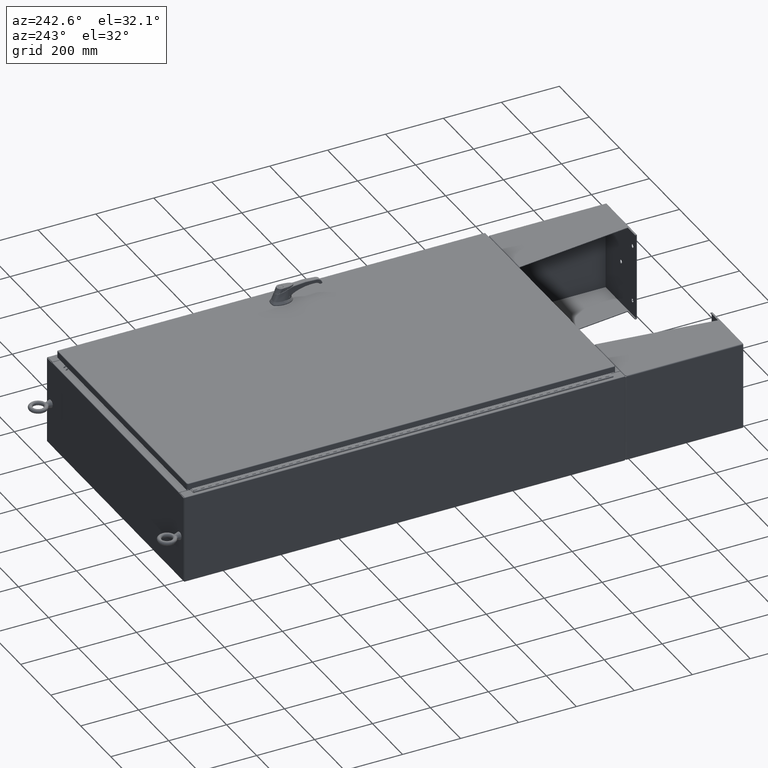
[diagram: clean part render]
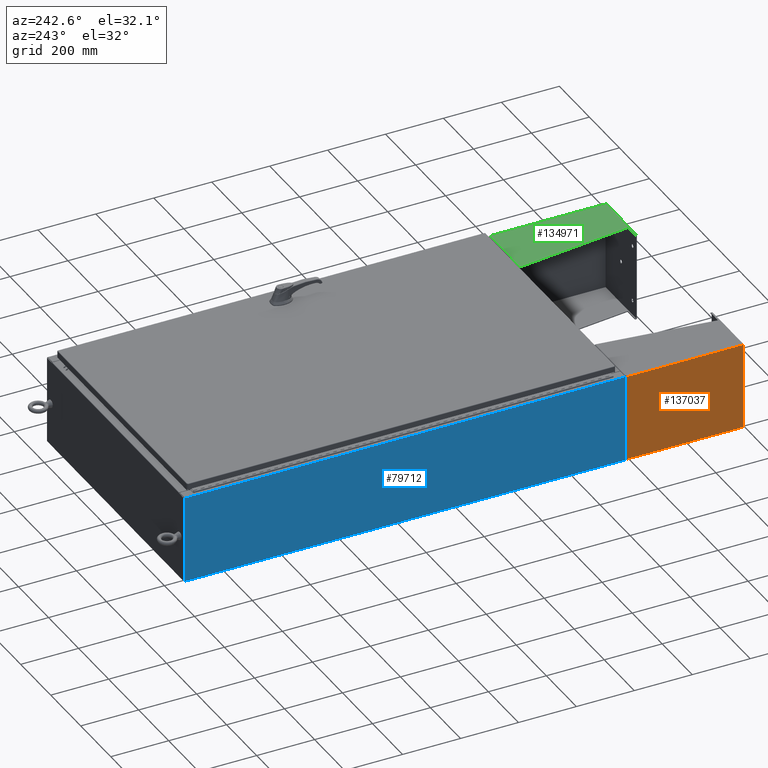
[diagram: same view with three faces highlighted in distinct colors, each labeled with its STEP entity id]
A machine part, auxiliary view with three faces highlighted in distinct colors.
Their STEP definitions:

[orange] entity #137037 — the highlighted planar face has unit normal (-1, 0, -0).
#2098 = VERTEX_POINT ( 'NONE', #40628 ) ;
#7407 = VECTOR ( 'NONE', #125602, 39.37007874015748100 ) ;
#18543 = EDGE_LOOP ( 'NONE', ( #98284, #33803, #34941, #119314 ) ) ;
#22575 = AXIS2_PLACEMENT_3D ( 'NONE', #24157, #35523, #114759 ) ;
#24157 = CARTESIAN_POINT ( 'NONE',  ( 5.999999999999996400, 8.000000000000001800, -0.1039999999999999800 ) ) ;
#26324 = CARTESIAN_POINT ( 'NONE',  ( -5.857000000000000200, -8.000000000000000000, -0.1039999999999998600 ) ) ;
#28467 = EDGE_CURVE ( 'NONE', #98365, #105161, #90963, .T. ) ;
#31236 = DIRECTION ( 'NONE',  ( 1.000000000000000000, 0.0000000000000000000, 0.0000000000000000000 ) ) ;
#31982 = EDGE_CURVE ( 'NONE', #105161, #2098, #67500, .T. ) ;
#33803 = ORIENTED_EDGE ( 'NONE', *, *, #31982, .T. ) ;
#34941 = ORIENTED_EDGE ( 'NONE', *, *, #98997, .T. ) ;
#35523 = DIRECTION ( 'NONE',  ( 0.0000000000000000000, 0.0000000000000000000, -1.000000000000000000 ) ) ;
#38472 = CARTESIAN_POINT ( 'NONE',  ( -5.857000000000000200, -7.999999999999999100, -0.1039999999999998600 ) ) ;
#40628 = CARTESIAN_POINT ( 'NONE',  ( 5.857000000000000200, 7.857000000000001100, -0.1039999999999998600 ) ) ;
#48250 = VECTOR ( 'NONE', #31236, 39.37007874015748100 ) ;
#55661 = CARTESIAN_POINT ( 'NONE',  ( 5.857000000000000200, 8.000000000000001800, -0.1039999999999998600 ) ) ;
#66989 = DIRECTION ( 'NONE',  ( -0.0000000000000000000, -1.000000000000000000, -0.0000000000000000000 ) ) ;
#67500 = LINE ( 'NONE', #80508, #7407 ) ;
#80508 = CARTESIAN_POINT ( 'NONE',  ( -5.857000000000000200, 7.857000000000001100, -0.1039999999999998600 ) ) ;
#84123 = VERTEX_POINT ( 'NONE', #120752 ) ;
#86767 = CARTESIAN_POINT ( 'NONE',  ( -5.857000000000000200, 7.856999999999998400, -0.1039999999999999000 ) ) ;
#90963 = LINE ( 'NONE', #38472, #94488 ) ;
#92759 = VECTOR ( 'NONE', #66989, 39.37007874015748100 ) ;
#94488 = VECTOR ( 'NONE', #117670, 39.37007874015748100 ) ;
#98284 = ORIENTED_EDGE ( 'NONE', *, *, #28467, .T. ) ;
#98365 = VERTEX_POINT ( 'NONE', #26324 ) ;
#98997 = EDGE_CURVE ( 'NONE', #2098, #84123, #122938, .T. ) ;
#99021 = CARTESIAN_POINT ( 'NONE',  ( -6.000000000000000900, -7.999999999999999100, -0.1039999999999999800 ) ) ;
#104947 = LINE ( 'NONE', #99021, #48250 ) ;
#105161 = VERTEX_POINT ( 'NONE', #86767 ) ;
#110583 = FACE_OUTER_BOUND ( 'NONE', #18543, .T. ) ;
#114759 = DIRECTION ( 'NONE',  ( -1.000000000000000000, 0.0000000000000000000, -0.0000000000000000000 ) ) ;
#117670 = DIRECTION ( 'NONE',  ( -0.0000000000000000000, 1.000000000000000000, -0.0000000000000000000 ) ) ;
#119029 = EDGE_CURVE ( 'NONE', #98365, #84123, #104947, .T. ) ;
#119314 = ORIENTED_EDGE ( 'NONE', *, *, #119029, .F. ) ;
#120752 = CARTESIAN_POINT ( 'NONE',  ( 5.857000000000000200, -7.999999999999989300, -0.1039999999999998600 ) ) ;
#122938 = LINE ( 'NONE', #55661, #92759 ) ;
#125593 = PLANE ( 'NONE',  #22575 ) ;
#125602 = DIRECTION ( 'NONE',  ( 1.000000000000000000, 0.0000000000000000000, 0.0000000000000000000 ) ) ;
#137037 = ADVANCED_FACE ( 'NONE', ( #110583 ), #125593, .T. ) ;

[blue] entity #79712 — the highlighted planar face has unit normal (1, 0, 0).
#7468 = CARTESIAN_POINT ( 'NONE',  ( -18.00000000000004300, 29.92529999999998900, 11.83760000000000200 ) ) ;
#8518 = EDGE_CURVE ( 'NONE', #103286, #27018, #121556, .T. ) ;
#12163 = EDGE_CURVE ( 'NONE', #27018, #60148, #33328, .T. ) ;
#13583 = VECTOR ( 'NONE', #22906, 39.37007874015748100 ) ;
#19634 = CARTESIAN_POINT ( 'NONE',  ( -18.00000000000004300, -29.92530000000001800, 11.83760000000000200 ) ) ;
#22906 = DIRECTION ( 'NONE',  ( 3.482016343714355500E-015, 0.0000000000000000000, -1.000000000000000000 ) ) ;
#25677 = EDGE_CURVE ( 'NONE', #60148, #69696, #47213, .T. ) ;
#27018 = VERTEX_POINT ( 'NONE', #124041 ) ;
#33328 = LINE ( 'NONE', #19634, #120091 ) ;
#37732 = PLANE ( 'NONE',  #75630 ) ;
#47213 = LINE ( 'NONE', #56538, #13583 ) ;
#49625 = CARTESIAN_POINT ( 'NONE',  ( -18.00000000000000400, 0.0000000000000000000, -6.293710784286997500E-014 ) ) ;
#56538 = CARTESIAN_POINT ( 'NONE',  ( -18.00000000000000400, 29.92529999999998900, -6.293710784286997500E-014 ) ) ;
#60148 = VERTEX_POINT ( 'NONE', #7468 ) ;
#60937 = DIRECTION ( 'NONE',  ( 3.482016343714355100E-015, 0.0000000000000000000, -1.000000000000000000 ) ) ;
#63753 = CARTESIAN_POINT ( 'NONE',  ( -18.00000000000000400, -29.92530000000001100, -6.293710784286997500E-014 ) ) ;
#66994 = ORIENTED_EDGE ( 'NONE', *, *, #25677, .T. ) ;
#69696 = VERTEX_POINT ( 'NONE', #105323 ) ;
#71626 = ORIENTED_EDGE ( 'NONE', *, *, #8518, .T. ) ;
#75630 = AXIS2_PLACEMENT_3D ( 'NONE', #49625, #128750, #60937 ) ;
#76886 = DIRECTION ( 'NONE',  ( -0.0000000000000000000, 1.000000000000000000, -0.0000000000000000000 ) ) ;
#78704 = CARTESIAN_POINT ( 'NONE',  ( -18.00000000000000400, -29.92530000000001100, 0.01299999999999984700 ) ) ;
#79712 = ADVANCED_FACE ( 'NONE', ( #110473 ), #37732, .F. ) ;
#80984 = EDGE_CURVE ( 'NONE', #103286, #69696, #131331, .T. ) ;
#83966 = ORIENTED_EDGE ( 'NONE', *, *, #80984, .F. ) ;
#91388 = VECTOR ( 'NONE', #97954, 39.37007874015748100 ) ;
#97954 = DIRECTION ( 'NONE',  ( -3.482016343714355500E-015, 0.0000000000000000000, 1.000000000000000000 ) ) ;
#101318 = VECTOR ( 'NONE', #76886, 39.37007874015748100 ) ;
#103286 = VERTEX_POINT ( 'NONE', #78704 ) ;
#105323 = CARTESIAN_POINT ( 'NONE',  ( -18.00000000000000400, 29.92529999999998600, 0.01299999999999984700 ) ) ;
#110473 = FACE_OUTER_BOUND ( 'NONE', #123767, .T. ) ;
#113306 = ORIENTED_EDGE ( 'NONE', *, *, #12163, .T. ) ;
#120091 = VECTOR ( 'NONE', #143747, 39.37007874015748100 ) ;
#121556 = LINE ( 'NONE', #63753, #91388 ) ;
#123767 = EDGE_LOOP ( 'NONE', ( #113306, #66994, #83966, #71626 ) ) ;
#124041 = CARTESIAN_POINT ( 'NONE',  ( -18.00000000000004300, -29.92530000000001100, 11.83760000000000200 ) ) ;
#128750 = DIRECTION ( 'NONE',  ( 1.000000000000000000, 0.0000000000000000000, 3.482016343714355100E-015 ) ) ;
#131331 = LINE ( 'NONE', #133246, #101318 ) ;
#133246 = CARTESIAN_POINT ( 'NONE',  ( -18.00000000000000400, 29.92529999999998900, 0.01299999999999984700 ) ) ;
#143747 = DIRECTION ( 'NONE',  ( 0.0000000000000000000, 1.000000000000000000, 0.0000000000000000000 ) ) ;

[green] entity #134971 — the highlighted planar face has unit normal (-0, -0, -1).
#1483 = LINE ( 'NONE', #100852, #28015 ) ;
#2645 = CARTESIAN_POINT ( 'NONE',  ( 6.000000000000013300, 7.857000000000001100, 0.03900000000001561900 ) ) ;
#6778 = VECTOR ( 'NONE', #79587, 39.37007874015748100 ) ;
#11901 = VERTEX_POINT ( 'NONE', #38942 ) ;
#13963 = LINE ( 'NONE', #145163, #130720 ) ;
#17097 = ORIENTED_EDGE ( 'NONE', *, *, #79608, .T. ) ;
#17656 = CARTESIAN_POINT ( 'NONE',  ( 6.000000000000029300, -7.999999999999999100, 8.001000000000015400 ) ) ;
#20277 = VECTOR ( 'NONE', #103069, 39.37007874015748100 ) ;
#21679 = ORIENTED_EDGE ( 'NONE', *, *, #24357, .T. ) ;
#24357 = EDGE_CURVE ( 'NONE', #106937, #11901, #36834, .T. ) ;
#25298 = ORIENTED_EDGE ( 'NONE', *, *, #59497, .F. ) ;
#25980 = ORIENTED_EDGE ( 'NONE', *, *, #27846, .T. ) ;
#27846 = EDGE_CURVE ( 'NONE', #11901, #118784, #140587, .T. ) ;
#28015 = VECTOR ( 'NONE', #44412, 39.37007874015748100 ) ;
#29036 = DIRECTION ( 'NONE',  ( -1.000000000000000000, 0.0000000000000000000, 3.550958521948298200E-015 ) ) ;
#36834 = LINE ( 'NONE', #113353, #6778 ) ;
#37524 = VERTEX_POINT ( 'NONE', #45082 ) ;
#37702 = CARTESIAN_POINT ( 'NONE',  ( 6.000000000000000900, -7.999999999999993800, 0.03899999999999890400 ) ) ;
#38942 = CARTESIAN_POINT ( 'NONE',  ( 6.000000000000029300, -7.999999999999999100, 8.001000000000015400 ) ) ;
#44412 = DIRECTION ( 'NONE',  ( -0.0000000000000000000, -1.000000000000000000, 0.0000000000000000000 ) ) ;
#45082 = CARTESIAN_POINT ( 'NONE',  ( 6.000000000000013300, 7.857000000000001100, 8.001000000000013700 ) ) ;
#59497 = EDGE_CURVE ( 'NONE', #73999, #37524, #13963, .T. ) ;
#64298 = CARTESIAN_POINT ( 'NONE',  ( 6.000000000000029300, -7.749999999999999100, 8.001000000000015400 ) ) ;
#64335 = VECTOR ( 'NONE', #70320, 39.37007874015748100 ) ;
#65639 = CARTESIAN_POINT ( 'NONE',  ( 6.000000000000013300, 7.857000000000001100, 0.03900000000001453000 ) ) ;
#68804 = CARTESIAN_POINT ( 'NONE',  ( 6.000000000000029300, -7.999999999999999100, 8.001000000000015400 ) ) ;
#69756 = AXIS2_PLACEMENT_3D ( 'NONE', #17656, #29036, #108273 ) ;
#70320 = DIRECTION ( 'NONE',  ( 0.0000000000000000000, 0.0000000000000000000, 1.000000000000000000 ) ) ;
#73999 = VERTEX_POINT ( 'NONE', #105112 ) ;
#79587 = DIRECTION ( 'NONE',  ( 0.0000000000000000000, -1.000000000000000000, 0.0000000000000000000 ) ) ;
#79608 = EDGE_CURVE ( 'NONE', #111374, #37524, #94443, .T. ) ;
#82520 = LINE ( 'NONE', #64298, #112769 ) ;
#87009 = ORIENTED_EDGE ( 'NONE', *, *, #111430, .F. ) ;
#88768 = DIRECTION ( 'NONE',  ( 4.399772607369798900E-016, 0.9922942345449394800, 0.1239038017531047700 ) ) ;
#90887 = EDGE_LOOP ( 'NONE', ( #122853, #21679, #25980, #87009, #17097, #25298 ) ) ;
#94443 = LINE ( 'NONE', #2645, #64335 ) ;
#96873 = EDGE_CURVE ( 'NONE', #106937, #73999, #82520, .T. ) ;
#97995 = DIRECTION ( 'NONE',  ( -3.550958521948298200E-015, -0.0000000000000000000, -1.000000000000000000 ) ) ;
#100852 = CARTESIAN_POINT ( 'NONE',  ( 5.999999999999999100, -7.999999999999999100, 0.03900000000001453000 ) ) ;
#103069 = DIRECTION ( 'NONE',  ( -3.550958521948298200E-015, 0.0000000000000000000, -1.000000000000000000 ) ) ;
#105112 = CARTESIAN_POINT ( 'NONE',  ( 6.000000000000021300, -7.749999999999999100, 6.052216497445950700 ) ) ;
#106937 = VERTEX_POINT ( 'NONE', #128623 ) ;
#108273 = DIRECTION ( 'NONE',  ( 3.550958521948298200E-015, 0.0000000000000000000, 1.000000000000000000 ) ) ;
#111374 = VERTEX_POINT ( 'NONE', #65639 ) ;
#111430 = EDGE_CURVE ( 'NONE', #111374, #118784, #1483, .T. ) ;
#112769 = VECTOR ( 'NONE', #97995, 39.37007874015748100 ) ;
#113353 = CARTESIAN_POINT ( 'NONE',  ( 6.000000000000029300, -7.999999999999999100, 8.001000000000015400 ) ) ;
#117105 = PLANE ( 'NONE',  #69756 ) ;
#118784 = VERTEX_POINT ( 'NONE', #37702 ) ;
#122853 = ORIENTED_EDGE ( 'NONE', *, *, #96873, .F. ) ;
#126782 = FACE_OUTER_BOUND ( 'NONE', #90887, .T. ) ;
#128623 = CARTESIAN_POINT ( 'NONE',  ( 6.000000000000029300, -7.749999999999999100, 8.001000000000031400 ) ) ;
#130720 = VECTOR ( 'NONE', #88768, 39.37007874015748100 ) ;
#134971 = ADVANCED_FACE ( 'NONE', ( #126782 ), #117105, .F. ) ;
#140587 = LINE ( 'NONE', #68804, #20277 ) ;
#145163 = CARTESIAN_POINT ( 'NONE',  ( 6.000000000000022200, -7.749999999999999100, 6.052216497445950700 ) ) ;